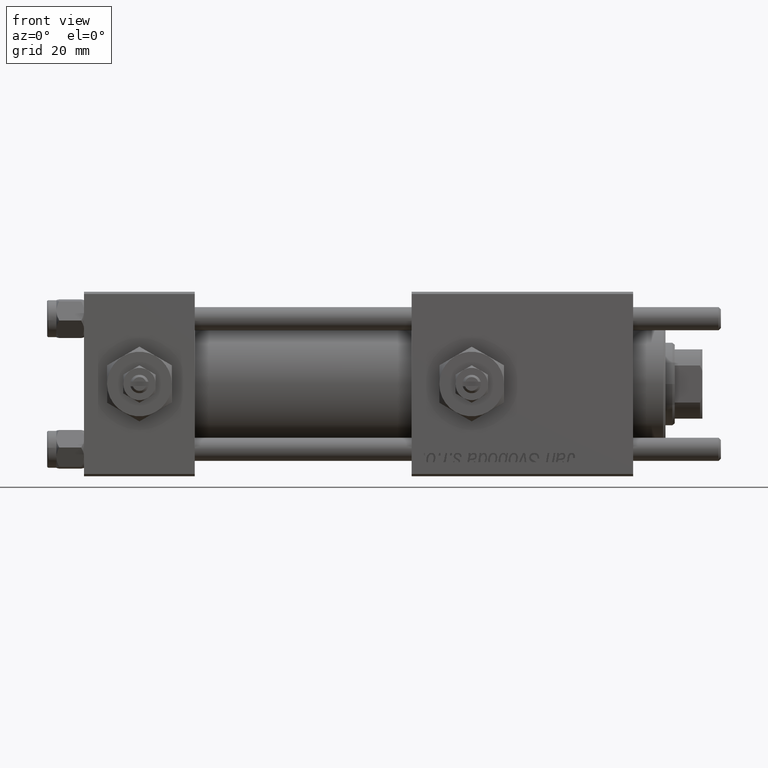
[diagram: clean part render]
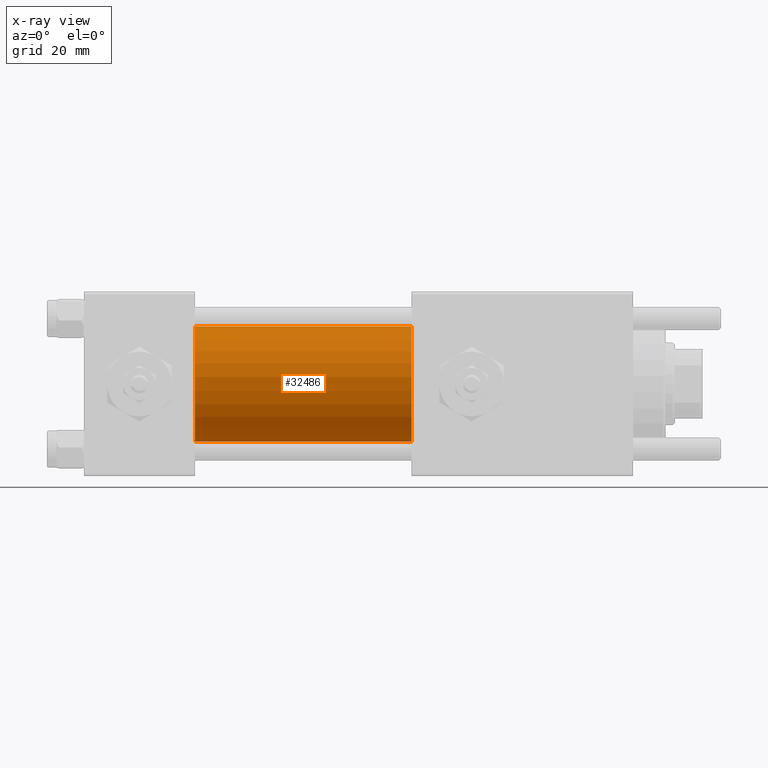
[diagram: x-ray — body ghosted, one internal face saturated and labeled with its STEP entity id]
A machine part, front view, then the same camera in x-ray: the body is ghosted and one INTERNAL B-rep face — a face not visible from any outside direction — is saturated and labeled: STEP entity #32486.
In plain terms, the highlighted cylindrical surface (partial cylindrical patch) has radius 12.5 mm, axis along (-1, -0, -0).
Its self-contained STEP definition (entity closure, byte-faithful):
#104 = FACE_OUTER_BOUND ( 'NONE', #33442, .T. ) ;
#932 = VERTEX_POINT ( 'NONE', #20168 ) ;
#2479 = CARTESIAN_POINT ( 'NONE',  ( 24.00000000000000000, -1.071276715031019515E-15, -12.49999999999999645 ) ) ;
#3542 = CARTESIAN_POINT ( 'NONE',  ( 24.00000000000000000, -2.602085213965210642E-15, 0.000000000000000000 ) ) ;
#4861 = DIRECTION ( 'NONE',  ( -1.000000000000000000, -0.000000000000000000, -0.000000000000000000 ) ) ;
#4986 = VERTEX_POINT ( 'NONE', #37681 ) ;
#7361 = DIRECTION ( 'NONE',  ( -1.000000000000000000, -0.000000000000000000, -0.000000000000000000 ) ) ;
#11344 = ORIENTED_EDGE ( 'NONE', *, *, #55312, .F. ) ;
#11353 = CIRCLE ( 'NONE', #17043, 12.49999999999999645 ) ;
#13921 = DIRECTION ( 'NONE',  ( 0.000000000000000000, 0.000000000000000000, -1.000000000000000000 ) ) ;
#16000 = LINE ( 'NONE', #43375, #29879 ) ;
#17043 = AXIS2_PLACEMENT_3D ( 'NONE', #54775, #28308, #37237 ) ;
#17507 = DIRECTION ( 'NONE',  ( 1.000000000000000000, 0.000000000000000000, 0.000000000000000000 ) ) ;
#20168 = CARTESIAN_POINT ( 'NONE',  ( 71.00000000000001421, -2.602085213965210642E-15, 12.49999999999999645 ) ) ;
#20649 = VECTOR ( 'NONE', #32360, 1000.000000000000000 ) ;
#22791 = AXIS2_PLACEMENT_3D ( 'NONE', #3542, #17507, #13921 ) ;
#23027 = CYLINDRICAL_SURFACE ( 'NONE', #56536, 12.49999999999999645 ) ;
#25264 = ORIENTED_EDGE ( 'NONE', *, *, #32342, .F. ) ;
#28308 = DIRECTION ( 'NONE',  ( 1.000000000000000000, 0.000000000000000000, 0.000000000000000000 ) ) ;
#29879 = VECTOR ( 'NONE', #7361, 1000.000000000000000 ) ;
#32342 = EDGE_CURVE ( 'NONE', #932, #4986, #16000, .T. ) ;
#32360 = DIRECTION ( 'NONE',  ( -1.000000000000000000, -0.000000000000000000, -0.000000000000000000 ) ) ;
#32486 = ADVANCED_FACE ( 'NONE', ( #104 ), #23027, .F. ) ;
#33442 = EDGE_LOOP ( 'NONE', ( #56603, #34291, #11344, #25264 ) ) ;
#34190 = CIRCLE ( 'NONE', #22791, 12.49999999999999645 ) ;
#34291 = ORIENTED_EDGE ( 'NONE', *, *, #40518, .T. ) ;
#36823 = LINE ( 'NONE', #41871, #20649 ) ;
#37237 = DIRECTION ( 'NONE',  ( 0.000000000000000000, 0.000000000000000000, -1.000000000000000000 ) ) ;
#37681 = CARTESIAN_POINT ( 'NONE',  ( 24.00000000000000000, -2.602085213965210642E-15, 12.49999999999999645 ) ) ;
#39759 = VERTEX_POINT ( 'NONE', #2479 ) ;
#40518 = EDGE_CURVE ( 'NONE', #56951, #39759, #36823, .T. ) ;
#41164 = DIRECTION ( 'NONE',  ( 0.000000000000000000, 0.000000000000000000, 1.000000000000000000 ) ) ;
#41871 = CARTESIAN_POINT ( 'NONE',  ( 71.00000000000001421, -1.071276715031019515E-15, -12.49999999999999645 ) ) ;
#43375 = CARTESIAN_POINT ( 'NONE',  ( 71.00000000000001421, -2.602085213965210642E-15, 12.49999999999999645 ) ) ;
#43955 = CARTESIAN_POINT ( 'NONE',  ( 71.00000000000001421, -2.602085213965210642E-15, 0.000000000000000000 ) ) ;
#51440 = CARTESIAN_POINT ( 'NONE',  ( 71.00000000000001421, -1.071276715031019515E-15, -12.49999999999999645 ) ) ;
#54775 = CARTESIAN_POINT ( 'NONE',  ( 71.00000000000001421, -2.602085213965210642E-15, 0.000000000000000000 ) ) ;
#55312 = EDGE_CURVE ( 'NONE', #4986, #39759, #34190, .T. ) ;
#55783 = EDGE_CURVE ( 'NONE', #932, #56951, #11353, .T. ) ;
#56536 = AXIS2_PLACEMENT_3D ( 'NONE', #43955, #4861, #41164 ) ;
#56603 = ORIENTED_EDGE ( 'NONE', *, *, #55783, .T. ) ;
#56951 = VERTEX_POINT ( 'NONE', #51440 ) ;